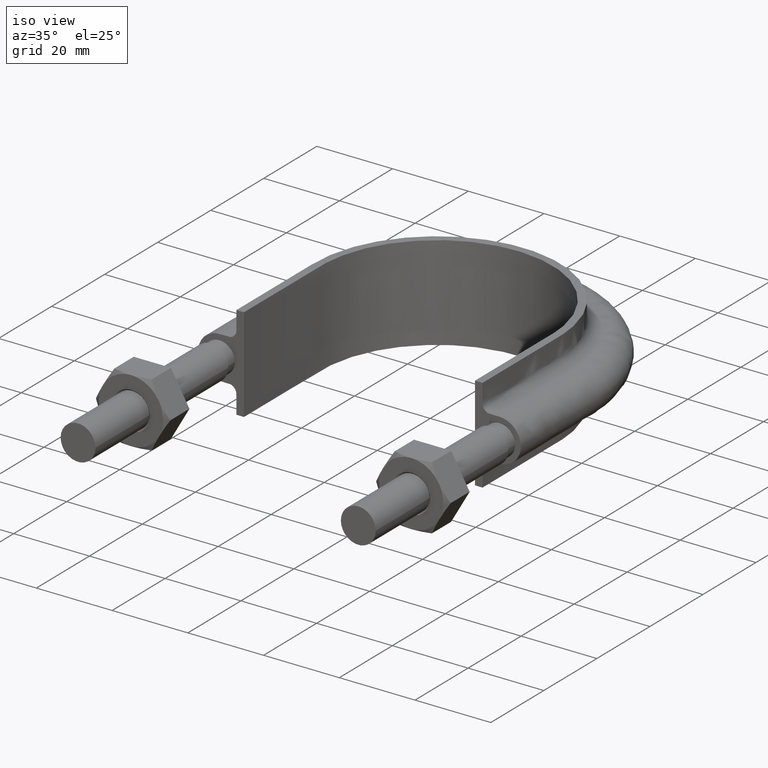
[diagram: clean part render]
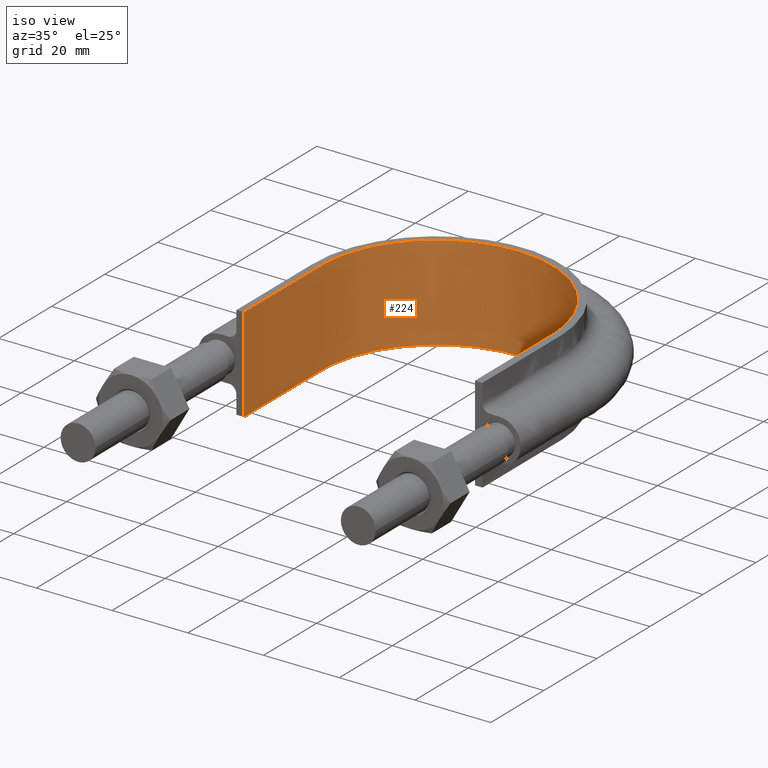
[diagram: same view with one face highlighted and labeled with its STEP entity id]
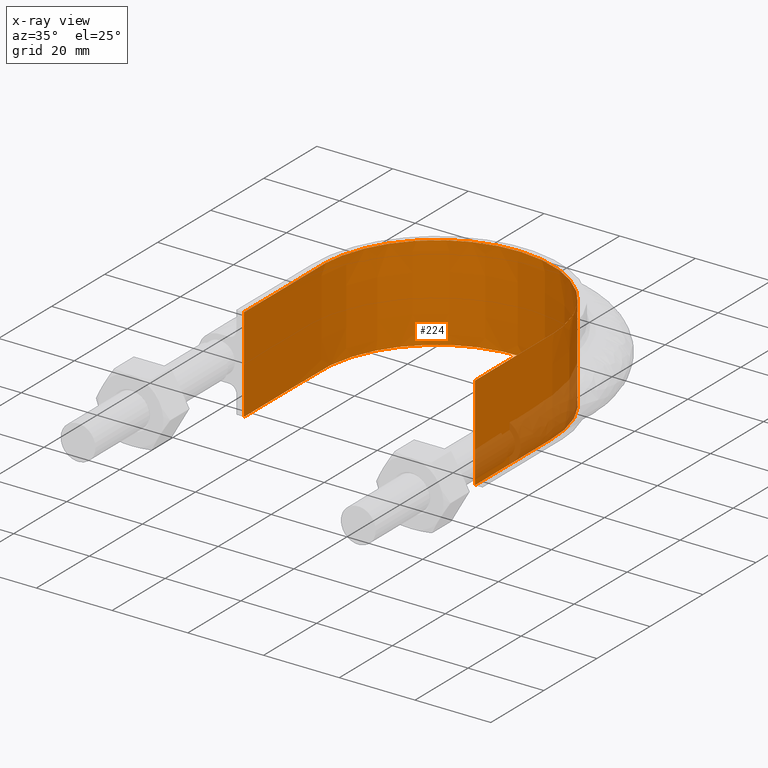
[diagram: x-ray of the same camera — body ghosted, the highlighted face saturated]
A machine part, iso view. The second image highlights one B-rep face of the part: STEP entity #224.
The next image is the same camera in x-ray: the body ghosted, the highlighted face saturated — about 9% of this face is hidden behind the body in this view.
In plain terms, the highlighted face is a SurfaceOfExtrusion surface.
Its self-contained STEP definition (entity closure, byte-faithful):
#224 = ADVANCED_FACE( '', ( #308 ), #309, .T. );
#308 = FACE_OUTER_BOUND( '', #1006, .T. );
#309 = SURFACE_OF_LINEAR_EXTRUSION( '', #1007, #1008 );
#1006 = EDGE_LOOP( '', ( #1499, #1500, #1501, #1502 ) );
#1007 = B_SPLINE_CURVE_WITH_KNOTS( '', 3, ( #1503, #1504, #1505, #1506, #1507, #1508, #1509, #1510, #1511, #1512, #1513, #1514, #1515, #1516, #1517, #1518, #1519 ), .UNSPECIFIED., .F., .F., ( 4, 3, 1, 1, 1, 1, 1, 1, 1, 3, 4 ), ( -7.88217522658610, -7.00000000000000, -6.50000000000000, -6.00000000000000, -5.00000000000000, -4.00000000000000, -3.00000000000000, -2.00000000000000, -1.50000000000000, -1.00000000000000, -0.117824773413899 ), .UNSPECIFIED. );
#1008 = VECTOR( '', #1520, 1000.00000000000 );
#1499 = ORIENTED_EDGE( '', *, *, #2015, .T. );
#1500 = ORIENTED_EDGE( '', *, *, #2005, .F. );
#1501 = ORIENTED_EDGE( '', *, *, #2016, .F. );
#1502 = ORIENTED_EDGE( '', *, *, #2009, .T. );
#1503 = CARTESIAN_POINT( '', ( 30.5000000000000, 53.3000000000001, 12.5000100000910 ) );
#1504 = CARTESIAN_POINT( '', ( 30.5000000000000, 63.0333333333334, 12.5000100000910 ) );
#1505 = CARTESIAN_POINT( '', ( 30.5000000000000, 72.7666666666667, 12.5000100000910 ) );
#1506 = CARTESIAN_POINT( '', ( 30.5000000000000, 82.5000000000000, 12.5000100000910 ) );
#1507 = CARTESIAN_POINT( '', ( 30.5000000000000, 85.1469095748589, 12.5000100000910 ) );
#1508 = CARTESIAN_POINT( '', ( 29.7847488998591, 90.4869374410593, 12.5000100000910 ) );
#1509 = CARTESIAN_POINT( '', ( 25.7022707691493, 100.407294151929, 12.5000100000910 ) );
#1510 = CARTESIAN_POINT( '', ( 15.9624408097424, 110.149665427345, 12.5000100000910 ) );
#1511 = CARTESIAN_POINT( '', ( 2.44209195454634E-014, 114.425167286328, 12.5000100000910 ) );
#1512 = CARTESIAN_POINT( '', ( -15.9624408097423, 110.149665427345, 12.5000100000910 ) );
#1513 = CARTESIAN_POINT( '', ( -25.7022707691492, 100.407294151929, 12.5000100000910 ) );
#1514 = CARTESIAN_POINT( '', ( -29.7847488998590, 90.4869374410593, 12.5000100000910 ) );
#1515 = CARTESIAN_POINT( '', ( -30.5000000000000, 85.1469095748589, 12.5000100000910 ) );
#1516 = CARTESIAN_POINT( '', ( -30.5000000000000, 82.5000000000000, 12.5000100000910 ) );
#1517 = CARTESIAN_POINT( '', ( -30.5000000000000, 72.7666666666667, 12.5000100000910 ) );
#1518 = CARTESIAN_POINT( '', ( -30.5000000000000, 63.0333333333334, 12.5000100000910 ) );
#1519 = CARTESIAN_POINT( '', ( -30.5000000000000, 53.3000000000001, 12.5000100000910 ) );
#1520 = DIRECTION( '', ( 0.000000000000000, 0.000000000000000, -1.00000000000000 ) );
#2005 = EDGE_CURVE( '', #2157, #2160, #2161, .T. );
#2009 = EDGE_CURVE( '', #2167, #2168, #2169, .T. );
#2015 = EDGE_CURVE( '', #2168, #2160, #2177, .F. );
#2016 = EDGE_CURVE( '', #2167, #2157, #2178, .T. );
#2157 = VERTEX_POINT( '', #2416 );
#2160 = VERTEX_POINT( '', #2420 );
#2161 = LINE( '', #2421, #2422 );
#2167 = VERTEX_POINT( '', #2468 );
#2168 = VERTEX_POINT( '', #2469 );
#2169 = LINE( '', #2470, #2471 );
#2177 = B_SPLINE_CURVE_WITH_KNOTS( '', 3, ( #2543, #2544, #2545, #2546, #2547, #2548, #2549, #2550, #2551, #2552, #2553, #2554, #2555, #2556, #2557, #2558, #2559 ), .UNSPECIFIED., .F., .F., ( 4, 3, 1, 1, 1, 1, 1, 1, 1, 3, 4 ), ( -7.88217522658610, -7.00000000000000, -6.50000000000000, -6.00000000000000, -5.00000000000000, -4.00000000000000, -3.00000000000000, -2.00000000000000, -1.50000000000000, -1.00000000000000, -0.117824773413899 ), .UNSPECIFIED. );
#2178 = B_SPLINE_CURVE_WITH_KNOTS( '', 3, ( #2560, #2561, #2562, #2563, #2564, #2565, #2566, #2567, #2568, #2569, #2570, #2571, #2572, #2573, #2574, #2575, #2576, #2577, #2578, #2579, #2580, #2581, #2582, #2583, #2584, #2585, #2586, #2587, #2588, #2589, #2590, #2591, #2592, #2593, #2594, #2595, #2596, #2597, #2598, #2599, #2600, #2601, #2602, #2603, #2604, #2605, #2606, #2607, #2608, #2609, #2610, #2611, #2612, #2613, #2614, #2615, #2616, #2617, #2618, #2619, #2620, #2621, #2622, #2623, #2624, #2625, #2626, #2627, #2628, #2629, #2630, #2631, #2632, #2633 ), .UNSPECIFIED., .F., .F., ( 4, 1, 2, 2, 2, 2, 2, 2, 2, 2, 2, 2, 2, 2, 2, 2, 2, 2, 2, 2, 2, 2, 2, 2, 2, 2, 2, 2, 2, 2, 2, 2, 2, 2, 2, 2, 1, 4 ), ( 1.38777878078145E-017, 0.0192554222640507, 0.0288831333960761, 0.0300865972875793, 0.0312900611790824, 0.0336969889620887, 0.0385108445281014, 0.0433247000941140, 0.0445281639856171, 0.0457316278771203, 0.0481385556601266, 0.0529524112261391, 0.0553593390091454, 0.0577662667921516, 0.0625801223581641, 0.0649870501411704, 0.0673939779241766, 0.0722078334901891, 0.0746147612731954, 0.0770216890562016, 0.0818355446222141, 0.0842424724052204, 0.0866494001882266, 0.0914632557542391, 0.0938701835372454, 0.0962771113202516, 0.101090966886264, 0.103497894669270, 0.105904822452277, 0.110718678018289, 0.115532533584302, 0.117939461367308, 0.120346389150314, 0.122753316933320, 0.123956780824824, 0.125160244716327, 0.134787955848351, 0.154043378112401 ), .UNSPECIFIED. );
#2416 = CARTESIAN_POINT( '', ( 30.5000000000000, 53.3000000000001, 12.5000000000000 ) );
#2420 = CARTESIAN_POINT( '', ( 30.5000000000000, 53.3000000000001, -12.5000000000000 ) );
#2421 = CARTESIAN_POINT( '', ( 30.5000000000000, 53.3000000000001, 12.5000100000910 ) );
#2422 = VECTOR( '', #3075, 1000.00000000000 );
#2468 = CARTESIAN_POINT( '', ( -30.5000000000000, 53.3000000000001, 12.5000000000000 ) );
#2469 = CARTESIAN_POINT( '', ( -30.5000000000000, 53.3000000000001, -12.5000000000000 ) );
#2470 = CARTESIAN_POINT( '', ( -30.5000000000000, 53.3000000000001, 12.5000100000910 ) );
#2471 = VECTOR( '', #3077, 1000.00000000000 );
#2543 = CARTESIAN_POINT( '', ( 30.5000000000000, 53.3000000000001, -12.5000000000000 ) );
#2544 = CARTESIAN_POINT( '', ( 30.5000000000000, 63.0333333333334, -12.5000000000000 ) );
#2545 = CARTESIAN_POINT( '', ( 30.5000000000000, 72.7666666666667, -12.5000000000000 ) );
#2546 = CARTESIAN_POINT( '', ( 30.5000000000000, 82.5000000000000, -12.5000000000000 ) );
#2547 = CARTESIAN_POINT( '', ( 30.5000000000000, 85.1469095748589, -12.5000000000000 ) );
#2548 = CARTESIAN_POINT( '', ( 29.7847488998591, 90.4869374410593, -12.5000000000000 ) );
#2549 = CARTESIAN_POINT( '', ( 25.7022707691493, 100.407294151929, -12.5000000000000 ) );
#2550 = CARTESIAN_POINT( '', ( 15.9624408097424, 110.149665427345, -12.5000000000000 ) );
#2551 = CARTESIAN_POINT( '', ( 2.44209195454634E-014, 114.425167286328, -12.5000000000000 ) );
#2552 = CARTESIAN_POINT( '', ( -15.9624408097423, 110.149665427345, -12.5000000000000 ) );
#2553 = CARTESIAN_POINT( '', ( -25.7022707691492, 100.407294151929, -12.5000000000000 ) );
#2554 = CARTESIAN_POINT( '', ( -29.7847488998590, 90.4869374410593, -12.5000000000000 ) );
#2555 = CARTESIAN_POINT( '', ( -30.5000000000000, 85.1469095748589, -12.5000000000000 ) );
#2556 = CARTESIAN_POINT( '', ( -30.5000000000000, 82.5000000000000, -12.5000000000000 ) );
#2557 = CARTESIAN_POINT( '', ( -30.5000000000000, 72.7666666666667, -12.5000000000000 ) );
#2558 = CARTESIAN_POINT( '', ( -30.5000000000000, 63.0333333333334, -12.5000000000000 ) );
#2559 = CARTESIAN_POINT( '', ( -30.5000000000000, 53.3000000000001, -12.5000000000000 ) );
#2560 = CARTESIAN_POINT( '', ( -30.5000000000000, 53.3000000000001, 12.5000000000000 ) );
#2561 = CARTESIAN_POINT( '', ( -30.5000000000000, 59.7187970838913, 12.5000000000000 ) );
#2562 = CARTESIAN_POINT( '', ( -30.5000000000000, 69.3469927097280, 12.5000000000000 ) );
#2563 = CARTESIAN_POINT( '', ( -30.5000000000000, 78.9751883355648, 12.5000000000000 ) );
#2564 = CARTESIAN_POINT( '', ( -30.5000000000000, 82.5857616952536, 12.5000000000000 ) );
#2565 = CARTESIAN_POINT( '', ( -30.4986844541323, 82.9869233149687, 12.5000000000000 ) );
#2566 = CARTESIAN_POINT( '', ( -30.4745981741132, 83.7890313082535, 12.5000000000000 ) );
#2567 = CARTESIAN_POINT( '', ( -30.4544492509141, 84.1900039847711, 12.5000000000000 ) );
#2568 = CARTESIAN_POINT( '', ( -30.3699321862256, 85.3926805324888, 12.5000000000000 ) );
#2569 = CARTESIAN_POINT( '', ( -30.2815513452004, 86.1941969152071, 12.5000000000000 ) );
#2570 = CARTESIAN_POINT( '', ( -29.9199873207873, 88.5974575716379, 12.5000000000000 ) );
#2571 = CARTESIAN_POINT( '', ( -29.5571198360746, 90.1597878617219, 12.5000000000000 ) );
#2572 = CARTESIAN_POINT( '', ( -28.5972722047830, 93.2078805901148, 12.5000000000000 ) );
#2573 = CARTESIAN_POINT( '', ( -28.0002144656636, 94.6936176513506, 12.5000000000000 ) );
#2574 = CARTESIAN_POINT( '', ( -27.0992764629768, 96.5002210087550, 12.5000000000000 ) );
#2575 = CARTESIAN_POINT( '', ( -26.9108830168221, 96.8597048381307, 12.5000000000000 ) );
#2576 = CARTESIAN_POINT( '', ( -26.5213882779157, 97.5675877861411, 12.5000000000000 ) );
#2577 = CARTESIAN_POINT( '', ( -26.3200606712639, 97.9164743968341, 12.5000000000000 ) );
#2578 = CARTESIAN_POINT( '', ( -25.6966622493176, 98.9482193844740, 12.5000000000000 ) );
#2579 = CARTESIAN_POINT( '', ( -25.2552822010554, 99.6162446284547, 12.5000000000000 ) );
#2580 = CARTESIAN_POINT( '', ( -23.8563980365694, 101.562902855285, 12.5000000000000 ) );
#2581 = CARTESIAN_POINT( '', ( -22.8247599514251, 102.784586967087, 12.5000000000000 ) );
#2582 = CARTESIAN_POINT( '', ( -21.1277356912024, 104.502217366142, 12.5000000000000 ) );
#2583 = CARTESIAN_POINT( '', ( -20.5344294178501, 105.057480363821, 12.5000000000000 ) );
#2584 = CARTESIAN_POINT( '', ( -19.3154400053685, 106.111482848478, 12.5000000000000 ) );
#2585 = CARTESIAN_POINT( '', ( -18.6885192790513, 106.611839840476, 12.5000000000000 ) );
#2586 = CARTESIAN_POINT( '', ( -16.7561230155804, 108.033962699371, 12.5000000000000 ) );
#2587 = CARTESIAN_POINT( '', ( -15.3990725127794, 108.876870841468, 12.5000000000000 ) );
#2588 = CARTESIAN_POINT( '', ( -13.2570671195093, 109.978502957119, 12.5000000000000 ) );
#2589 = CARTESIAN_POINT( '', ( -12.5228230069798, 110.319814017707, 12.5000000000000 ) );
#2590 = CARTESIAN_POINT( '', ( -11.0306240768060, 110.942412499716, 12.5000000000000 ) );
#2591 = CARTESIAN_POINT( '', ( -10.2767436568867, 111.222274993299, 12.5000000000000 ) );
#2592 = CARTESIAN_POINT( '', ( -7.99256638845168, 111.970812104532, 12.5000000000000 ) );
#2593 = CARTESIAN_POINT( '', ( -6.43991564048132, 112.349172113475, 12.5000000000000 ) );
#2594 = CARTESIAN_POINT( '', ( -4.06589188416629, 112.734709900453, 12.5000000000000 ) );
#2595 = CARTESIAN_POINT( '', ( -3.26699737472988, 112.832705696047, 12.5000000000000 ) );
#2596 = CARTESIAN_POINT( '', ( -1.65347310558420, 112.965123458687, 12.5000000000000 ) );
#2597 = CARTESIAN_POINT( '', ( -0.846703494355755, 112.998768451046, 12.5000000000000 ) );
#2598 = CARTESIAN_POINT( '', ( 1.55984817231915, 113.002363337310, 12.5000000000000 ) );
#2599 = CARTESIAN_POINT( '', ( 3.15187678310372, 112.876183128002, 12.5000000000000 ) );
#2600 = CARTESIAN_POINT( '', ( 5.52210746155242, 112.501305428157, 12.5000000000000 ) );
#2601 = CARTESIAN_POINT( '', ( 6.30919715953041, 112.345218975853, 12.5000000000000 ) );
#2602 = CARTESIAN_POINT( '', ( 7.87729381106987, 111.969662553274, 12.5000000000000 ) );
#2603 = CARTESIAN_POINT( '', ( 8.65917048563714, 111.749575242180, 12.5000000000000 ) );
#2604 = CARTESIAN_POINT( '', ( 10.9545464152787, 111.005259840029, 12.5000000000000 ) );
#2605 = CARTESIAN_POINT( '', ( 12.4320231471580, 110.394841390723, 12.5000000000000 ) );
#2606 = CARTESIAN_POINT( '', ( 14.5688395440172, 109.307386671407, 12.5000000000000 ) );
#2607 = CARTESIAN_POINT( '', ( 15.2677563263256, 108.915999398825, 12.5000000000000 ) );
#2608 = CARTESIAN_POINT( '', ( 16.6381409078519, 108.073822399900, 12.5000000000000 ) );
#2609 = CARTESIAN_POINT( '', ( 17.3125759005460, 107.620964775786, 12.5000000000000 ) );
#2610 = CARTESIAN_POINT( '', ( 19.2664798661707, 106.192854811404, 12.5000000000000 ) );
#2611 = CARTESIAN_POINT( '', ( 20.4798446876838, 105.148667712286, 12.5000000000000 ) );
#2612 = CARTESIAN_POINT( '', ( 22.1715309172385, 103.449889227024, 12.5000000000000 ) );
#2613 = CARTESIAN_POINT( '', ( 22.7138929749291, 102.861402400307, 12.5000000000000 ) );
#2614 = CARTESIAN_POINT( '', ( 23.7548102890672, 101.639210134757, 12.5000000000000 ) );
#2615 = CARTESIAN_POINT( '', ( 24.2544864579075, 101.003952520684, 12.5000000000000 ) );
#2616 = CARTESIAN_POINT( '', ( 25.6776288297832, 99.0375811703479, 12.5000000000000 ) );
#2617 = CARTESIAN_POINT( '', ( 26.5096219006963, 97.6683929281867, 12.5000000000000 ) );
#2618 = CARTESIAN_POINT( '', ( 27.9456565910457, 94.8162559376610, 12.5000000000000 ) );
#2619 = CARTESIAN_POINT( '', ( 28.5509590265555, 93.3339364069384, 12.5000000000000 ) );
#2620 = CARTESIAN_POINT( '', ( 29.2876344042200, 91.0249796848164, 12.5000000000000 ) );
#2621 = CARTESIAN_POINT( '', ( 29.5032356740682, 90.2439773078622, 12.5000000000000 ) );
#2622 = CARTESIAN_POINT( '', ( 29.8703294719088, 88.6797381224588, 12.5000000000000 ) );
#2623 = CARTESIAN_POINT( '', ( 30.0228181117525, 87.8935874420540, 12.5000000000000 ) );
#2624 = CARTESIAN_POINT( '', ( 30.2663038414340, 86.3133050211837, 12.5000000000000 ) );
#2625 = CARTESIAN_POINT( '', ( 30.3573018810972, 85.5191734039971, 12.5000000000000 ) );
#2626 = CARTESIAN_POINT( '', ( 30.4466313783281, 84.3218540452474, 12.5000000000000 ) );
#2627 = CARTESIAN_POINT( '', ( 30.4685308150341, 83.9217252192101, 12.5000000000000 ) );
#2628 = CARTESIAN_POINT( '', ( 30.4961990804467, 83.1193739566921, 12.5000000000000 ) );
#2629 = CARTESIAN_POINT( '', ( 30.5000000000000, 82.7168961029852, 12.5000000000000 ) );
#2630 = CARTESIAN_POINT( '', ( 30.5000000000001, 79.0901554875487, 12.5000000000000 ) );
#2631 = CARTESIAN_POINT( '', ( 30.5000000000000, 69.4188471797180, 12.5000000000000 ) );
#2632 = CARTESIAN_POINT( '', ( 30.5000000000000, 59.7475388718872, 12.5000000000000 ) );
#2633 = CARTESIAN_POINT( '', ( 30.5000000000000, 53.3000000000000, 12.5000000000000 ) );
#3075 = DIRECTION( '', ( 0.000000000000000, 0.000000000000000, -1.00000000000000 ) );
#3077 = DIRECTION( '', ( 0.000000000000000, 0.000000000000000, -1.00000000000000 ) );